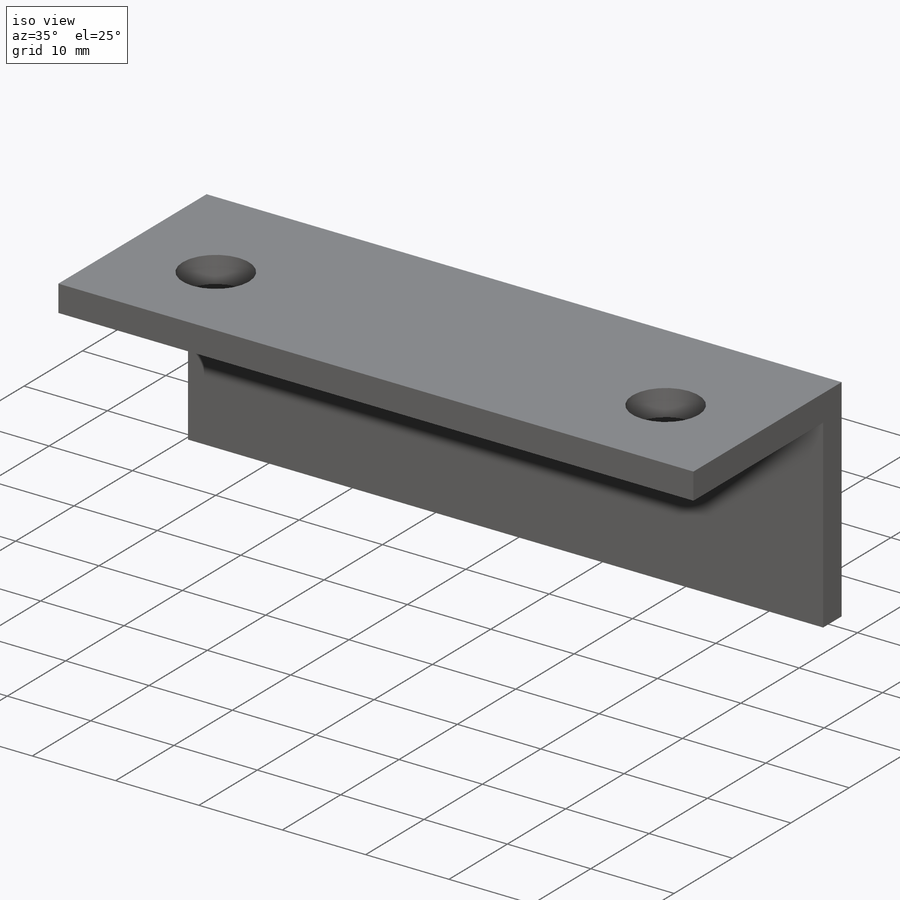
[diagram: iso view]
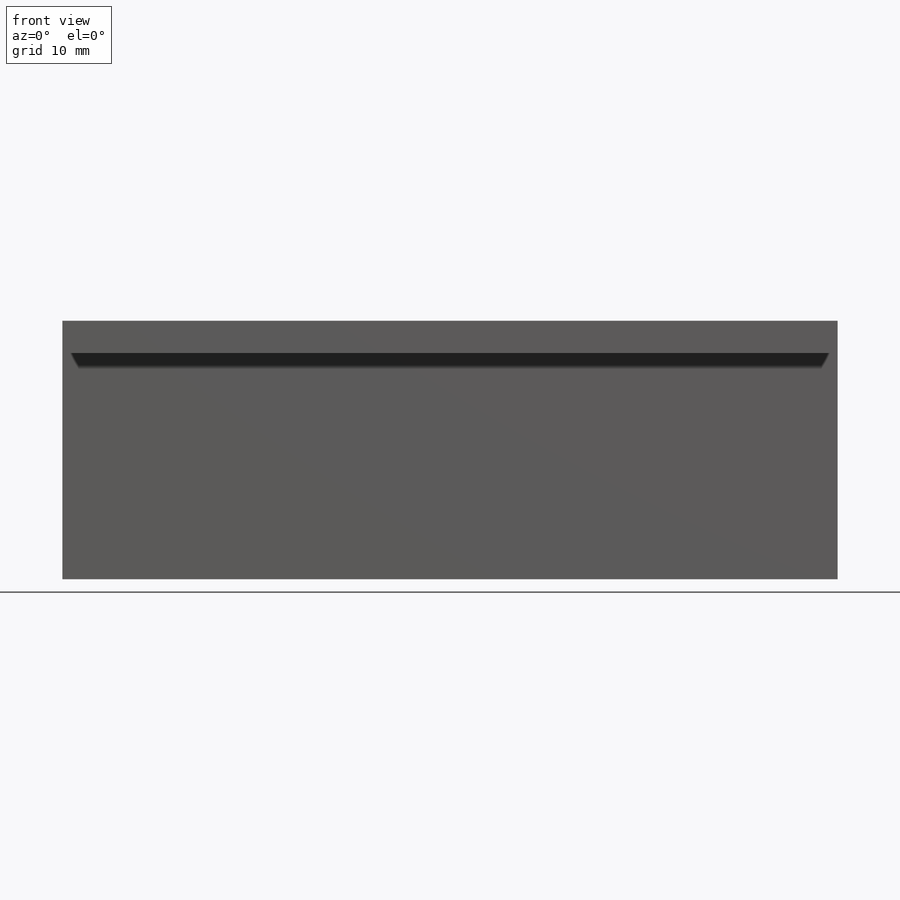
[diagram: front view]
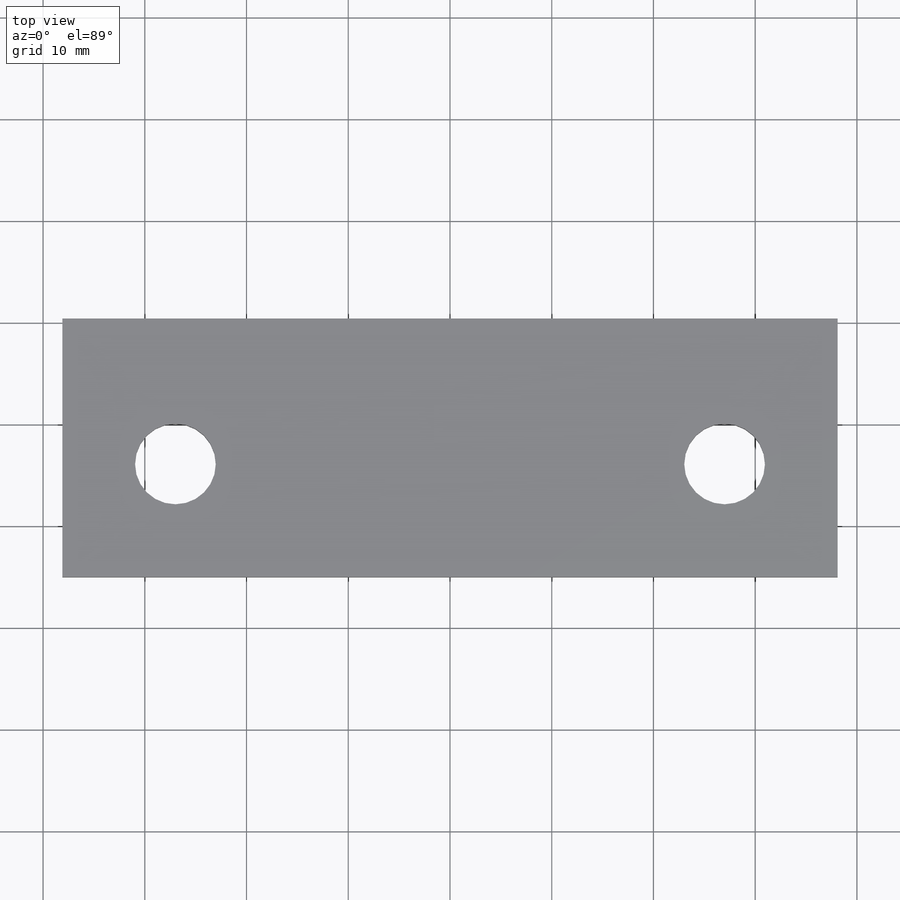
[diagram: top view]
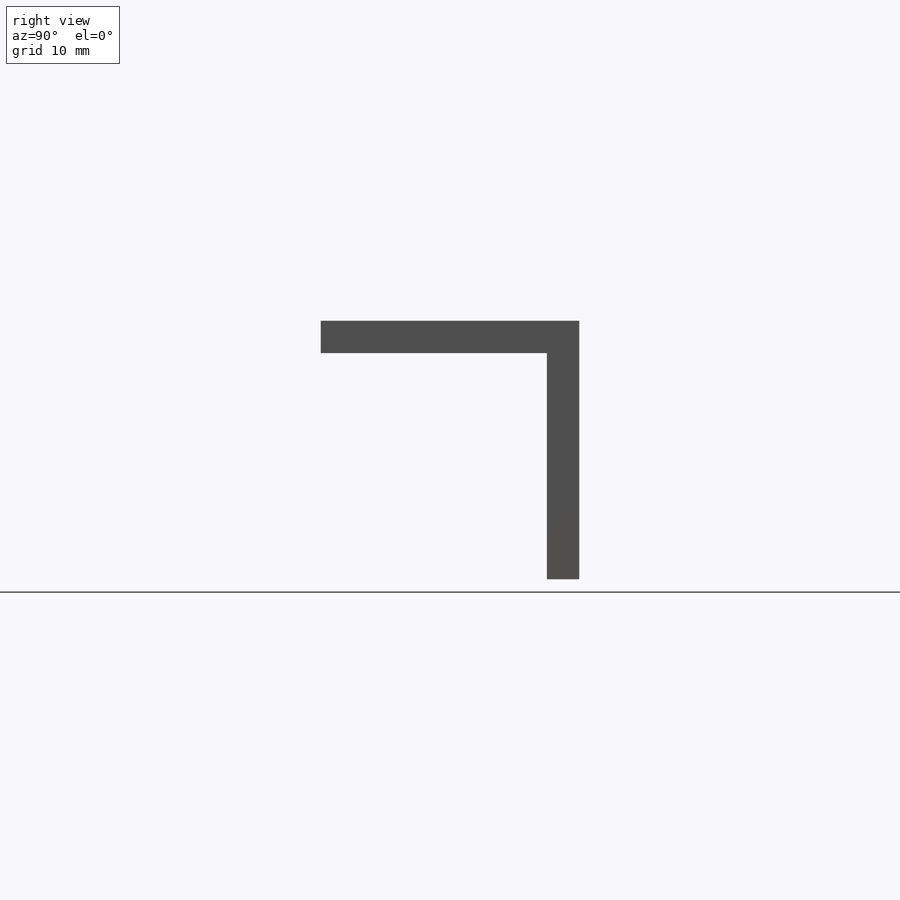
[diagram: right view]
SOLIDWORKS PART (.sldprt)
format: sldprt  version: not decoded by parser v0  size: 169,984 bytes
history: native  units: mm
features: sketch x4, material x1, extrude x1, hole x1 (+12 scaffold rows collapsed)
feature tree (19):
  scaffold x12  (default folders/planes/origin — collapsed)
  material  "Material <not specified>"
  sketch  "Sketch1"  dims[D1=25.4mm D2=25.4mm D3=3.175mm D4=3.175mm]
  extrude  "Boss-Extrude2"  Depth=76.2mm
  hole  "5/16 (0.3125) Diameter Hole1"  Diameter=7.9375mm Depth=3.175mm
  sketch  "Sketch3"  dims[D1=53.975mm D2=14.2875mm]
  sketch  "Sketch2"  dims[hole-wizard template sketch: 59 standard entries collapsed; hole parameters kept: c18.Thru Hole Dia.=7.9375mm c18.Thru Hole Depth=3.175mm]
  sketch  "Sketch4"
decode coverage: 5 of 6 modeling features carry decoded parameters
note: ~ marks probable driven/reference dimensions
note: suppression state not decoded; provenance and decode notes live in map.json
